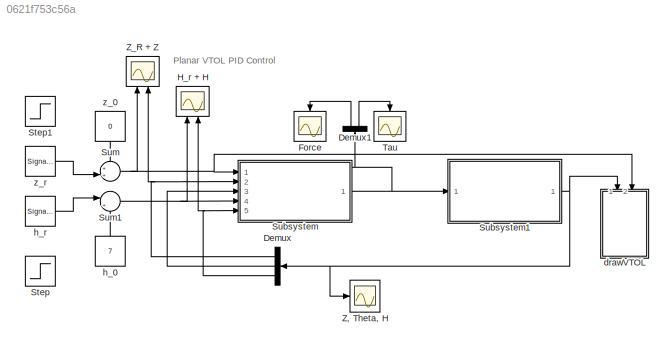
MODEL slx_0621f753c56a
KIND model
CONFIG AbsTol = auto
CONFIG EnableMultiTasking = on
CONFIG FixedStep = auto
CONFIG InitFcn = param
CONFIG MaxStep = auto
CONFIG MinStep = auto
CONFIG RelTol = 1e-3
CONFIG SampleTimeConstraint = Unconstrained
CONFIG Solver = ode45
CONFIG SolverName = ode45
CONFIG StartTime = 0.0
CONFIG StopTime = 500
BLOCK [Demux] Demux
  DisplayOption = bar
  Outputs = 3
  Ports = [1, 3]
BLOCK [Demux] Demux1
  DisplayOption = bar
  Outputs = 2
  Ports = [1, 2]
BLOCK [Scope] Force
  NumInputPorts = 1
  Ports = [1]
  ScopeSpecificationString = Simulink.scopes.TimeScopeBlockCfg('CurrentConfiguration', extmgr.ConfigurationSet(extmgr.Configuration('Core','General UI',true),extmgr.Configuration('Core','Source UI',true),extmgr.Configuration('Sources','WiredSimulink',true,'DataLoggingSaveFormat','Array','DataLoggingDecimation','1','DataLoggingDecimateData',true),extmgr.Configuration('Visuals','Time Domain',true,'SerializedDisplays',{struct('M...<+1504ch>
BLOCK [Scope] H_r + H
  NumInputPorts = 2
  Ports = [2]
  ScopeSpecificationString = Simulink.scopes.TimeScopeBlockCfg('CurrentConfiguration', extmgr.ConfigurationSet(extmgr.Configuration('Core','General UI',true),extmgr.Configuration('Core','Source UI',true),extmgr.Configuration('Sources','WiredSimulink',true,'DataLoggingVariableName','ScopeData3'),extmgr.Configuration('Visuals','Time Domain',true,'SerializedDisplays',{struct('MinYLimReal','-11.69312','MaxYLimReal','14.63257','YL...<+1435ch>
BLOCK [Step] Step
  After = 3
  SampleTime = 0
BLOCK [Step] Step1
  After = 2
  SampleTime = 0
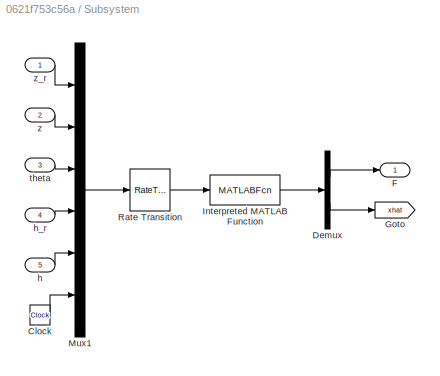
BLOCK [SubSystem] Subsystem
  Ports = [5, 1]
  RequestExecContextInheritance = off
  Variant = off
BLOCK [Clock] Subsystem/Clock
BLOCK [Demux] Subsystem/Demux
  DisplayOption = bar
  Outputs = [2;6]
  Ports = [1, 2]
BLOCK [Outport] Subsystem/F
  IconDisplay = Port number
BLOCK [Goto] Subsystem/Goto
  GotoTag = xhat
  TagVisibility = global
BLOCK [MATLABFcn] Subsystem/Interpreted MATLAB Function
  MATLABFcn = VTOL_ctrl_obs(u,P)
  Output1D = off
  OutputDimensions = 2+6
  Ports = [1, 1]
BLOCK [Mux] Subsystem/Mux1
  DisplayOption = bar
  Inputs = 6
  Ports = [6, 1]
BLOCK [RateTransition] Subsystem/Rate Transition
  OutPortSampleTime = P.Ts
BLOCK [Inport] Subsystem/h
  IconDisplay = Port number
  Port = 5
BLOCK [Inport] Subsystem/h_r
  IconDisplay = Port number
  Port = 4
BLOCK [Inport] Subsystem/theta
  IconDisplay = Port number
  Port = 3
BLOCK [Inport] Subsystem/z
  IconDisplay = Port number
  Port = 2
BLOCK [Inport] Subsystem/z_r
  IconDisplay = Port number
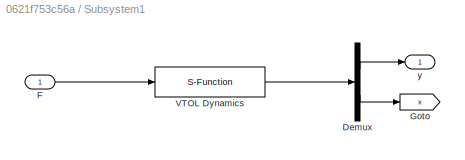
BLOCK [SubSystem] Subsystem1
  Ports = [1, 1]
  RequestExecContextInheritance = off
  Variant = off
BLOCK [Demux] Subsystem1/Demux
  DisplayOption = bar
  Outputs = [3;6]
  Ports = [1, 2]
BLOCK [Inport] Subsystem1/F
  IconDisplay = Port number
BLOCK [Goto] Subsystem1/Goto
  GotoTag = x
  TagVisibility = global
BLOCK [S-Function] Subsystem1/VTOL Dynamics
  EnableBusSupport = off
  FunctionName = VTOL_dynamics
  Parameters = P
  Ports = [1, 1]
  SFcnIsStateOwnerBlock = off
  SFunctionDeploymentMode = off
BLOCK [Outport] Subsystem1/y
  IconDisplay = Port number
BLOCK [Sum] Sum
  IconShape = round
  InputSameDT = off
  Inputs = ++|
  OutDataTypeStr = Inherit: Inherit via internal rule
  Ports = [2, 1]
  SaturateOnIntegerOverflow = off
BLOCK [Sum] Sum1
  IconShape = round
  InputSameDT = off
  Inputs = |++
  OutDataTypeStr = Inherit: Inherit via internal rule
  Ports = [2, 1]
  SaturateOnIntegerOverflow = off
BLOCK [Scope] Tau
  NumInputPorts = 1
  Ports = [1]
  ScopeSpecificationString = Simulink.scopes.TimeScopeBlockCfg('CurrentConfiguration', extmgr.ConfigurationSet(extmgr.Configuration('Core','General UI',true),extmgr.Configuration('Core','Source UI',true),extmgr.Configuration('Sources','WiredSimulink',true,'DataLoggingSaveFormat','Array','DataLoggingDecimation','1','DataLoggingDecimateData',true,'DataLoggingVariableName','ScopeData1'),extmgr.Configuration('Visuals','Time Domai...<+1536ch>
BLOCK [Scope] Z, Theta, H
  NumInputPorts = 1
  Ports = [1]
  ScopeSpecificationString = Simulink.scopes.TimeScopeBlockCfg('CurrentConfiguration', extmgr.ConfigurationSet(extmgr.Configuration('Core','General UI',true),extmgr.Configuration('Core','Source UI',true),extmgr.Configuration('Sources','WiredSimulink',true,'DataLoggingVariableName','ScopeData1','DataLoggingSaveFormat','Array','DataLoggingDecimation','1','DataLoggingDecimateData',true),extmgr.Configuration('Visuals','Time Domai...<+1559ch>
BLOCK [Scope] Z_R + Z
  NumInputPorts = 2
  Ports = [2]
  ScopeSpecificationString = Simulink.scopes.TimeScopeBlockCfg('CurrentConfiguration', extmgr.ConfigurationSet(extmgr.Configuration('Core','General UI',true),extmgr.Configuration('Core','Source UI',true),extmgr.Configuration('Sources','WiredSimulink',true,'DataLoggingVariableName','ScopeData2'),extmgr.Configuration('Visuals','Time Domain',true,'SerializedDisplays',{struct('MinYLimReal','-6.79066','MaxYLimReal','6.79083','YLab...<+1433ch>
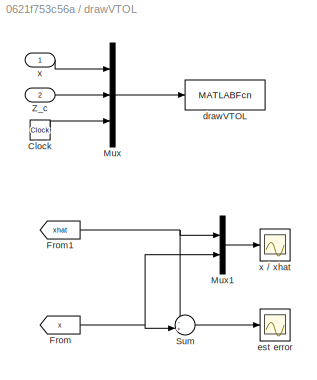
BLOCK [SubSystem] drawVTOL
  Ports = [2]
  RequestExecContextInheritance = off
  Variant = off
BLOCK [Clock] drawVTOL/Clock
BLOCK [From] drawVTOL/From
  GotoTag = x
  TagVisibility = global
BLOCK [From] drawVTOL/From1
  GotoTag = xhat
  TagVisibility = global
BLOCK [Mux] drawVTOL/Mux
  DisplayOption = bar
  Inputs = 3
  Ports = [3, 1]
BLOCK [Mux] drawVTOL/Mux1
  DisplayOption = bar
  Inputs = 2
  Ports = [2, 1]
BLOCK [Sum] drawVTOL/Sum
  IconShape = round
  InputSameDT = off
  Inputs = -+|
  OutDataTypeStr = Inherit: Inherit via internal rule
  Ports = [2, 1]
  SaturateOnIntegerOverflow = off
BLOCK [Inport] drawVTOL/Z_c
  IconDisplay = Port number
  Port = 2
BLOCK [MATLABFcn] drawVTOL/drawVTOL
  MATLABFcn = drawVTOLsys(u)
  OutputDimensions = 0
  Ports = [1]
  SampleTime = .5
BLOCK [Scope] drawVTOL/est error
  NumInputPorts = 1
  Ports = [1]
  ScopeSpecificationString = Simulink.scopes.TimeScopeBlockCfg('CurrentConfiguration', extmgr.ConfigurationSet(extmgr.Configuration('Core','General UI',true),extmgr.Configuration('Core','Source UI',true),extmgr.Configuration('Sources','WiredSimulink',true,'DataLoggingVariableName','ScopeData1','DataLoggingSaveFormat','StructureWithTime','DataLoggingLimitDataPoints',true,'DataLoggingDecimation','1','DataLoggingDecimateData',tr...<+1842ch>
BLOCK [Inport] drawVTOL/x
  IconDisplay = Port number
BLOCK [Scope] drawVTOL/x // xhat
  NumInputPorts = 1
  Ports = [1]
  ScopeSpecificationString = Simulink.scopes.TimeScopeBlockCfg('CurrentConfiguration', extmgr.ConfigurationSet(extmgr.Configuration('Core','General UI',true),extmgr.Configuration('Core','Source UI',true),extmgr.Configuration('Sources','WiredSimulink',true,'DataLoggingVariableName','ScopeData2','DataLoggingSaveFormat','StructureWithTime','DataLoggingLimitDataPoints',true,'DataLoggingDecimation','1','DataLoggingDecimateData',tr...<+1937ch>
BLOCK [Constant] h_0
  Value = 7
BLOCK [SignalGenerator] h_r
  Amplitude = 5
  Frequency = .01
  Ports = [0, 1]
  WaveForm = square
BLOCK [Constant] z_0
  Value = 0
BLOCK [SignalGenerator] z_r
  Amplitude = 5
  Frequency = 0.015
  Ports = [0, 1]
  WaveForm = square
ANNOTATION (root): Planar VTOL PID Control
LINE Demux1:1 -> Force:1
LINE Demux1:2 -> Tau:1
NET Demux:1 -> Subsystem:2, Z_R + Z:2
LINE Demux:2 -> Subsystem:3
NET Demux:3 -> H_r + H:2, Subsystem:5
LINE Subsystem/Clock:1 -> Subsystem/Mux1:6
LINE Subsystem/Demux:1 -> Subsystem/F:1
LINE Subsystem/Demux:2 -> Subsystem/Goto:1
LINE Subsystem/Interpreted MATLAB Function:1 -> Subsystem/Demux:1
LINE Subsystem/Mux1:1 -> Subsystem/Rate Transition:1
LINE Subsystem/Rate Transition:1 -> Subsystem/Interpreted MATLAB Function:1
LINE Subsystem/h:1 -> Subsystem/Mux1:5
LINE Subsystem/h_r:1 -> Subsystem/Mux1:4
LINE Subsystem/theta:1 -> Subsystem/Mux1:3
LINE Subsystem/z:1 -> Subsystem/Mux1:2
LINE Subsystem/z_r:1 -> Subsystem/Mux1:1
LINE Subsystem1/Demux:1 -> Subsystem1/y:1
LINE Subsystem1/Demux:2 -> Subsystem1/Goto:1
LINE Subsystem1/F:1 -> Subsystem1/VTOL Dynamics:1
LINE Subsystem1/VTOL Dynamics:1 -> Subsystem1/Demux:1
NET Subsystem1:1 -> Demux:1, Z, Theta, H:1, drawVTOL:1
NET Subsystem:1 -> Demux1:1, Subsystem1:1
NET Sum1:1 -> H_r + H:1, Subsystem:4
NET Sum:1 -> Subsystem:1, Z_R + Z:1, drawVTOL:2
LINE drawVTOL/Clock:1 -> drawVTOL/Mux:3
NET drawVTOL/From1:1 -> drawVTOL/Mux1:1, drawVTOL/Sum:1
NET drawVTOL/From:1 -> drawVTOL/Mux1:2, drawVTOL/Sum:2
LINE drawVTOL/Mux1:1 -> drawVTOL/x // xhat:1
LINE drawVTOL/Mux:1 -> drawVTOL/drawVTOL:1
LINE drawVTOL/Sum:1 -> drawVTOL/est error:1
LINE drawVTOL/Z_c:1 -> drawVTOL/Mux:2
LINE drawVTOL/x:1 -> drawVTOL/Mux:1
LINE h_0:1 -> Sum1:2
LINE h_r:1 -> Sum1:1
LINE z_0:1 -> Sum:1
LINE z_r:1 -> Sum:2
note: NET lines group one-source signal fan-out (src -> all destinations, sorted); 1:1 wires keep LINE
